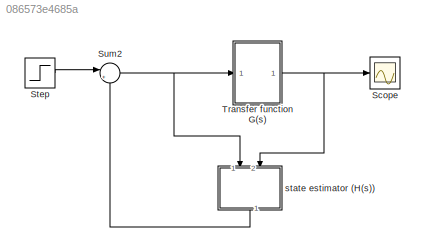
MODEL slx_086573e4685a
KIND model
CONFIG AbsTol = auto
CONFIG EnableMultiTasking = off
CONFIG FixedStep = auto
CONFIG MaxStep = auto
CONFIG MinStep = auto
CONFIG RelTol = 1e-3
CONFIG SampleTimeConstraint = Unconstrained
CONFIG SolverName = VariableStepAuto
CONFIG StartTime = 0.0
CONFIG StopTime = 10.0
BLOCK [Scope] Scope
  Floating = off
  NumInputPorts = 1
  Ports = [1]
  ScopeSpecificationString = Simulink.scopes.TimeScopeBlockCfg('CurrentConfiguration', extmgr.ConfigurationSet(extmgr.Configuration('Core','General UI',true),extmgr.Configuration('Core','Source UI',true),extmgr.Configuration('Sources','WiredSimulink',true,'DataLogging',true,'DataLoggingLimitDataPoints',true,'DataLoggingSaveFormat','StructureWithTime'),extmgr.Configuration('Visuals','Time Domain',true,'SerializedDisplays',{str...<+1426ch>
BLOCK [Step] Step
  SampleTime = 0
  Time = 0
BLOCK [Sum] Sum2
  Inputs = |+-
  Ports = [2, 1]
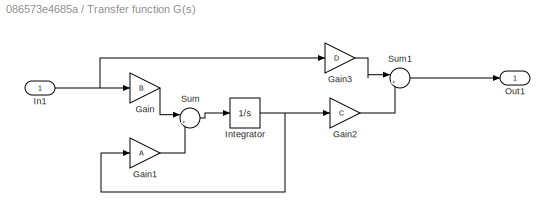
BLOCK [SubSystem] Transfer function G(s)
  Ports = [1, 1]
  RequestExecContextInheritance = off
BLOCK [Gain] Transfer function G(s)/Gain
  Gain = B
  Multiplication = Matrix(K*u)
BLOCK [Gain] Transfer function G(s)/Gain1
  Gain = A
  Multiplication = Matrix(K*u)
BLOCK [Gain] Transfer function G(s)/Gain2
  Gain = C
  Multiplication = Matrix(K*u)
BLOCK [Gain] Transfer function G(s)/Gain3
  Gain = D
  Multiplication = Matrix(K*u)
BLOCK [Inport] Transfer function G(s)/In1
BLOCK [Integrator] Transfer function G(s)/Integrator
  Ports = [1, 1]
BLOCK [Outport] Transfer function G(s)/Out1
BLOCK [Sum] Transfer function G(s)/Sum
  Inputs = |++
  Ports = [2, 1]
BLOCK [Sum] Transfer function G(s)/Sum1
  Inputs = |++
  Ports = [2, 1]
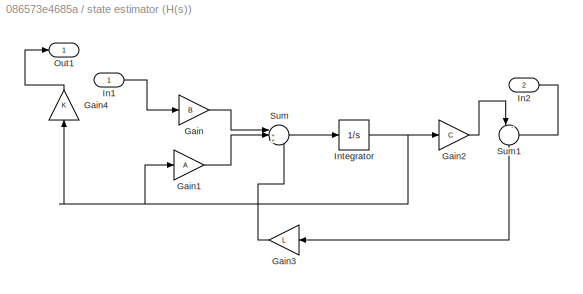
BLOCK [SubSystem] state estimator (H(s))
  NameLocation = left
  Ports = [2, 1]
  RequestExecContextInheritance = off
BLOCK [Gain] state estimator (H(s))/Gain
  Gain = B
  Multiplication = Matrix(K*u)
BLOCK [Gain] state estimator (H(s))/Gain1
  Gain = A
  Multiplication = Matrix(K*u)
BLOCK [Gain] state estimator (H(s))/Gain2
  Gain = C
  Multiplication = Matrix(K*u)
BLOCK [Gain] state estimator (H(s))/Gain3
  Gain = L
  Multiplication = Matrix(K*u)
BLOCK [Gain] state estimator (H(s))/Gain4
  Gain = K
  Multiplication = Matrix(K*u)
  NameLocation = right
BLOCK [Inport] state estimator (H(s))/In1
BLOCK [Inport] state estimator (H(s))/In2
  Port = 2
BLOCK [Integrator] state estimator (H(s))/Integrator
  InitialCondition = z0
  Ports = [1, 1]
BLOCK [Outport] state estimator (H(s))/Out1
BLOCK [Sum] state estimator (H(s))/Sum
  Inputs = |+++
  Ports = [3, 1]
BLOCK [Sum] state estimator (H(s))/Sum1
  Inputs = |-+
  NameLocation = right
  Ports = [2, 1]
LINE Step:1 -> Sum2:1
NET Sum2:1 -> Transfer function G(s):1, state estimator (H(s)):1
LINE Transfer function G(s)/Gain1:1 -> Transfer function G(s)/Sum:2
LINE Transfer function G(s)/Gain2:1 -> Transfer function G(s)/Sum1:2
LINE Transfer function G(s)/Gain3:1 -> Transfer function G(s)/Sum1:1
LINE Transfer function G(s)/Gain:1 -> Transfer function G(s)/Sum:1
NET Transfer function G(s)/In1:1 -> Transfer function G(s)/Gain3:1, Transfer function G(s)/Gain:1
NET Transfer function G(s)/Integrator:1 -> Transfer function G(s)/Gain1:1, Transfer function G(s)/Gain2:1
LINE Transfer function G(s)/Sum1:1 -> Transfer function G(s)/Out1:1
LINE Transfer function G(s)/Sum:1 -> Transfer function G(s)/Integrator:1
NET Transfer function G(s):1 -> Scope:1, state estimator (H(s)):2
LINE state estimator (H(s))/Gain1:1 -> state estimator (H(s))/Sum:2
LINE state estimator (H(s))/Gain2:1 -> state estimator (H(s))/Sum1:1
LINE state estimator (H(s))/Gain3:1 -> state estimator (H(s))/Sum:3
LINE state estimator (H(s))/Gain4:1 -> state estimator (H(s))/Out1:1
LINE state estimator (H(s))/Gain:1 -> state estimator (H(s))/Sum:1
LINE state estimator (H(s))/In1:1 -> state estimator (H(s))/Gain:1
LINE state estimator (H(s))/In2:1 -> state estimator (H(s))/Sum1:2
NET state estimator (H(s))/Integrator:1 -> state estimator (H(s))/Gain1:1, state estimator (H(s))/Gain2:1, state estimator (H(s))/Gain4:1
LINE state estimator (H(s))/Sum1:1 -> state estimator (H(s))/Gain3:1
LINE state estimator (H(s))/Sum:1 -> state estimator (H(s))/Integrator:1
LINE state estimator (H(s)):1 -> Sum2:2
note: NET lines group one-source signal fan-out (src -> all destinations, sorted); 1:1 wires keep LINE
